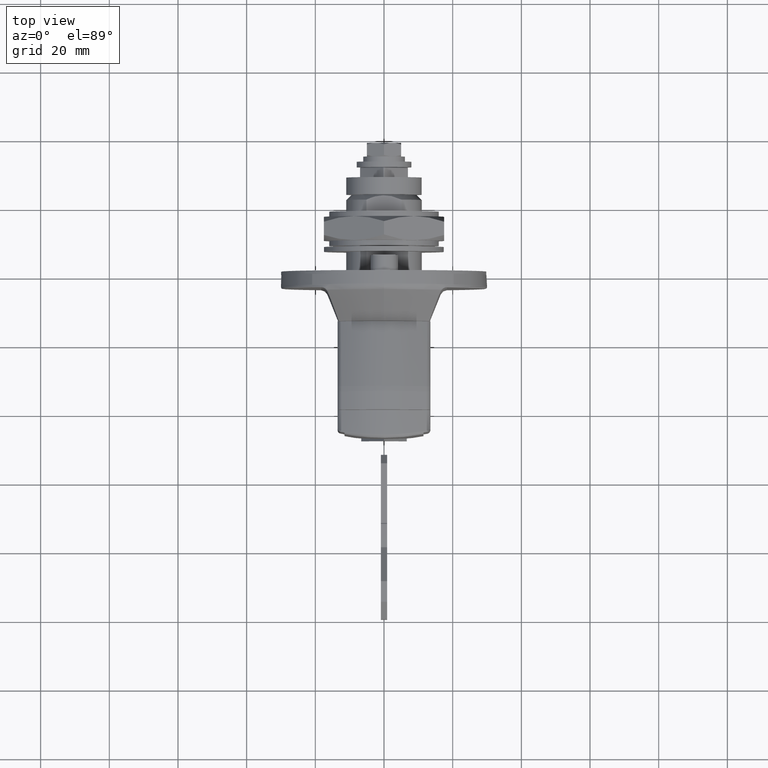
[diagram: clean part render]
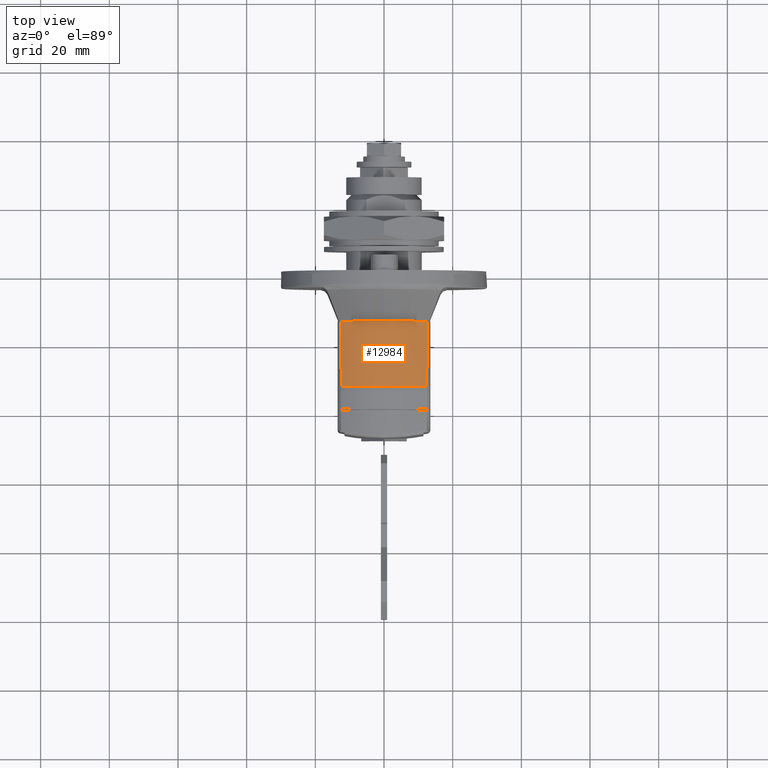
[diagram: same view with one face highlighted and labeled with its STEP entity id]
A machine part, top view. The second image highlights one B-rep face of the part: STEP entity #12984.
In plain terms, the highlighted face is a freeform B-spline surface patch.
Its self-contained STEP definition (entity closure, byte-faithful):
#11864=CARTESIAN_POINT('',(-14.600000000000000,12.581581216552120,10.253670146008600));
#11865=VERTEX_POINT('',#11864);
#11895=CARTESIAN_POINT('',(-33.551571837788202,12.451023895939960,13.694896993184020));
#11896=VERTEX_POINT('',#11895);
#11910=CARTESIAN_POINT('',(-14.600000000000000,12.581581216552120,10.253670146008600));
#11911=CARTESIAN_POINT('',(-17.755525175990812,12.556858547889160,10.843863956153690));
#11912=CARTESIAN_POINT('',(-20.912891235407599,12.533810108722459,11.424185448676431));
#11913=CARTESIAN_POINT('',(-27.230356430530961,12.490466218733591,12.569923671640110));
#11914=CARTESIAN_POINT('',(-30.390439773431229,12.470172227064310,13.135312725233840));
#11915=CARTESIAN_POINT('',(-33.551571837788202,12.451023895939960,13.694896993184020));
#11916=B_SPLINE_CURVE_WITH_KNOTS('',3,(#11910,#11911,#11912,#11913,#11914,#11915),.UNSPECIFIED.,.F.,.U.,(4,2,4),(0.0,0.500000000000000,1.0),.UNSPECIFIED.);
#11917=EDGE_CURVE('',#11865,#11896,#11916,.T.);
#12060=CARTESIAN_POINT('',(-33.551571837788202,-12.451023895939960,13.694896993184020));
#12061=VERTEX_POINT('',#12060);
#12088=CARTESIAN_POINT('',(-14.600000000000000,-12.581581216552120,10.253670146008600));
#12089=VERTEX_POINT('',#12088);
#12110=CARTESIAN_POINT('',(-33.551571837788202,-12.451023895939960,13.694896993184020));
#12111=CARTESIAN_POINT('',(-30.390433276472550,-12.470172266419169,13.135311575140831));
#12112=CARTESIAN_POINT('',(-27.230328869974372,-12.490466403129250,12.569918699484250));
#12113=CARTESIAN_POINT('',(-20.912886828090929,-12.533810143657190,11.424184623124830));
#12114=CARTESIAN_POINT('',(-17.755535907309390,-12.556858463812240,10.843865963286399));
#12115=CARTESIAN_POINT('',(-14.600000000000000,-12.581581216552120,10.253670146008600));
#12116=B_SPLINE_CURVE_WITH_KNOTS('',3,(#12110,#12111,#12112,#12113,#12114,#12115),.UNSPECIFIED.,.F.,.U.,(4,2,4),(0.0,0.500000000000000,1.0),.UNSPECIFIED.);
#12117=EDGE_CURVE('',#12061,#12089,#12116,.T.);
#12860=CARTESIAN_POINT('',(-14.600000000000000,-12.581581216552131,10.253670146008600));
#12861=CARTESIAN_POINT('',(-14.600000000000007,-5.204170E-015,18.475281127617375));
#12862=CARTESIAN_POINT('',(-14.600000000000000,12.581581216552120,10.253670146008600));
#12870=(BOUNDED_CURVE()B_SPLINE_CURVE(2,(#12860,#12861,#12862),.UNSPECIFIED.,.F.,.U.)CURVE()GEOMETRIC_REPRESENTATION_ITEM()QUASI_UNIFORM_CURVE()RATIONAL_B_SPLINE_CURVE((1.0,0.837116093304722,1.0))REPRESENTATION_ITEM(''));
#12871=EDGE_CURVE('',#12089,#11865,#12870,.T.);
#12900=CARTESIAN_POINT('',(-33.551571837788202,-12.451023895939951,13.694896993184010));
#12901=CARTESIAN_POINT('',(-33.551571837788195,-6.938894E-015,20.525859746785724));
#12902=CARTESIAN_POINT('',(-33.551571837788202,12.451023895939940,13.694896993184020));
#12910=(BOUNDED_CURVE()B_SPLINE_CURVE(2,(#12900,#12901,#12902),.UNSPECIFIED.,.F.,.U.)CURVE()GEOMETRIC_REPRESENTATION_ITEM()QUASI_UNIFORM_CURVE()RATIONAL_B_SPLINE_CURVE((1.0,0.876723871545442,1.0))REPRESENTATION_ITEM(''));
#12911=EDGE_CURVE('',#12061,#11896,#12910,.T.);
#12964=CARTESIAN_POINT('',(-14.126210704055289,13.261057357469291,9.703759876034383));
#12965=CARTESIAN_POINT('',(-34.037205866131529,15.014787693019841,12.177269355652120));
#12966=CARTESIAN_POINT('',(-14.126210704055294,-0.234640610948830,19.272275833491136));
#12967=CARTESIAN_POINT('',(-34.037205866131536,-0.265671044366066,23.011189439525669));
#12968=CARTESIAN_POINT('',(-14.126210704055294,-13.569666198894293,9.481083166011393));
#12969=CARTESIAN_POINT('',(-34.037205866131522,-15.364209018128243,11.925144397962212));
#12977=(BOUNDED_SURFACE()B_SPLINE_SURFACE(1,2,((#12964,#12966,#12968),(#12965,#12967,#12969)),.UNSPECIFIED.,.F.,.F.,.U.)B_SPLINE_SURFACE_WITH_KNOTS((2,2),(3,3),(0.0,20.140544867997299),(0.0,33.551583310682858),.UNSPECIFIED.)GEOMETRIC_REPRESENTATION_ITEM()RATIONAL_B_SPLINE_SURFACE(((1.0,0.807799134028451,0.992273924380735),(1.0,0.807799134028451,0.992273924380735)))REPRESENTATION_ITEM('')SURFACE());
#12978=ORIENTED_EDGE('',*,*,#12871,.T.);
#12979=ORIENTED_EDGE('',*,*,#11917,.T.);
#12980=ORIENTED_EDGE('',*,*,#12911,.F.);
#12981=ORIENTED_EDGE('',*,*,#12117,.T.);
#12982=EDGE_LOOP('',(#12978,#12979,#12980,#12981));
#12983=FACE_OUTER_BOUND('',#12982,.T.);
#12984=ADVANCED_FACE('',(#12983),#12977,.T.);